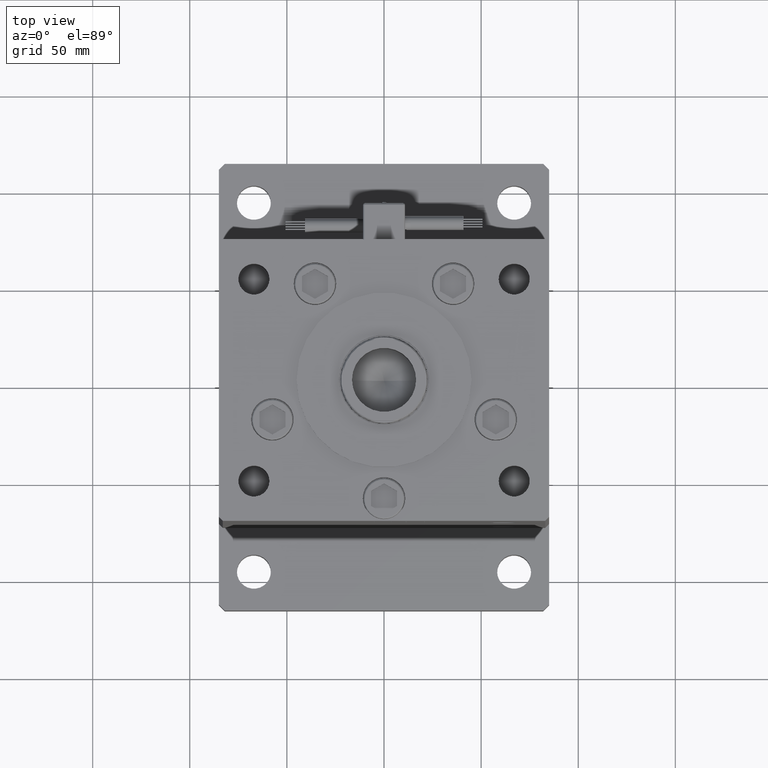
[diagram: clean part render]
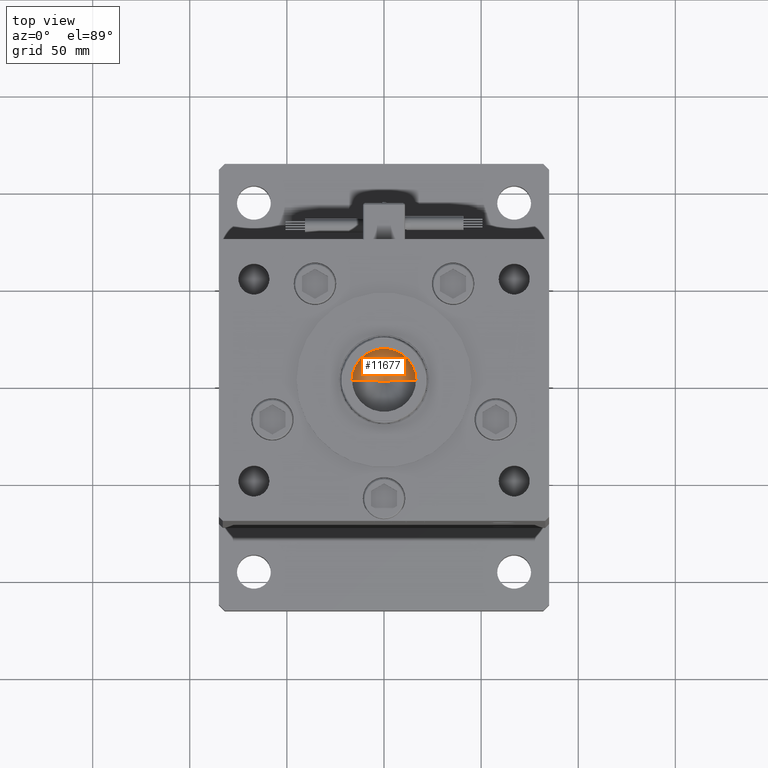
[diagram: same view with one face highlighted and labeled with its STEP entity id]
A machine part, top view. The second image highlights one B-rep face of the part: STEP entity #11677.
In plain terms, the highlighted conical surface has half-angle 59 deg.
Its self-contained STEP definition (entity closure, byte-faithful):
#898 = EDGE_CURVE ( 'NONE', #22769, #10819, #2479, .T. ) ;
#1816 = VERTEX_POINT ( 'NONE', #17122 ) ;
#1919 = CARTESIAN_POINT ( 'NONE',  ( -22.39000000000000057, 0.000000000000000000, 0.000000000000000000 ) ) ;
#2479 = CIRCLE ( 'NONE', #4290, 16.49999999999999289 ) ;
#2946 = CONICAL_SURFACE ( 'NONE', #34830, 16.49999999999999289, 1.029744258676653645 ) ;
#4290 = AXIS2_PLACEMENT_3D ( 'NONE', #53082, #14009, #35980 ) ;
#9425 = ORIENTED_EDGE ( 'NONE', *, *, #31411, .T. ) ;
#10819 = VERTEX_POINT ( 'NONE', #11941 ) ;
#11151 = CARTESIAN_POINT ( 'NONE',  ( -22.39000000000000057, 0.000000000000000000, -16.49999999999999289 ) ) ;
#11374 = VECTOR ( 'NONE', #38268, 1000.000000000000000 ) ;
#11677 = ADVANCED_FACE ( 'NONE', ( #36181 ), #2946, .F. ) ;
#11941 = CARTESIAN_POINT ( 'NONE',  ( -22.39000000000000057, 2.020667218593132311E-15, 16.49999999999999289 ) ) ;
#13967 = EDGE_LOOP ( 'NONE', ( #44688, #9425, #35433 ) ) ;
#14009 = DIRECTION ( 'NONE',  ( 1.000000000000000000, -0.000000000000000000, -0.000000000000000000 ) ) ;
#17122 = CARTESIAN_POINT ( 'NONE',  ( -32.30420021395475771, -7.088805540759547745E-15, 0.000000000000000000 ) ) ;
#22769 = VERTEX_POINT ( 'NONE', #28132 ) ;
#23951 = EDGE_CURVE ( 'NONE', #1816, #10819, #39805, .T. ) ;
#28132 = CARTESIAN_POINT ( 'NONE',  ( -22.39000000000000057, 0.000000000000000000, -16.49999999999999289 ) ) ;
#31411 = EDGE_CURVE ( 'NONE', #1816, #22769, #54502, .T. ) ;
#34765 = VECTOR ( 'NONE', #48643, 1000.000000000000000 ) ;
#34830 = AXIS2_PLACEMENT_3D ( 'NONE', #1919, #40176, #40736 ) ;
#35433 = ORIENTED_EDGE ( 'NONE', *, *, #898, .T. ) ;
#35980 = DIRECTION ( 'NONE',  ( 0.000000000000000000, 0.000000000000000000, -1.000000000000000000 ) ) ;
#36181 = FACE_OUTER_BOUND ( 'NONE', #13967, .T. ) ;
#38268 = DIRECTION ( 'NONE',  ( 0.5150380749100549327, 0.000000000000000000, -0.8571673007021118895 ) ) ;
#39805 = LINE ( 'NONE', #53730, #34765 ) ;
#40176 = DIRECTION ( 'NONE',  ( 1.000000000000000000, -0.000000000000000000, -0.000000000000000000 ) ) ;
#40736 = DIRECTION ( 'NONE',  ( 0.000000000000000000, 0.000000000000000000, -1.000000000000000000 ) ) ;
#44688 = ORIENTED_EDGE ( 'NONE', *, *, #23951, .F. ) ;
#48643 = DIRECTION ( 'NONE',  ( 0.5150380749100549327, 1.049727191138618079E-16, 0.8571673007021118895 ) ) ;
#53082 = CARTESIAN_POINT ( 'NONE',  ( -22.39000000000000057, 0.000000000000000000, 0.000000000000000000 ) ) ;
#53730 = CARTESIAN_POINT ( 'NONE',  ( -22.39000000000000057, 2.020667218593132311E-15, 16.49999999999999289 ) ) ;
#54502 = LINE ( 'NONE', #11151, #11374 ) ;